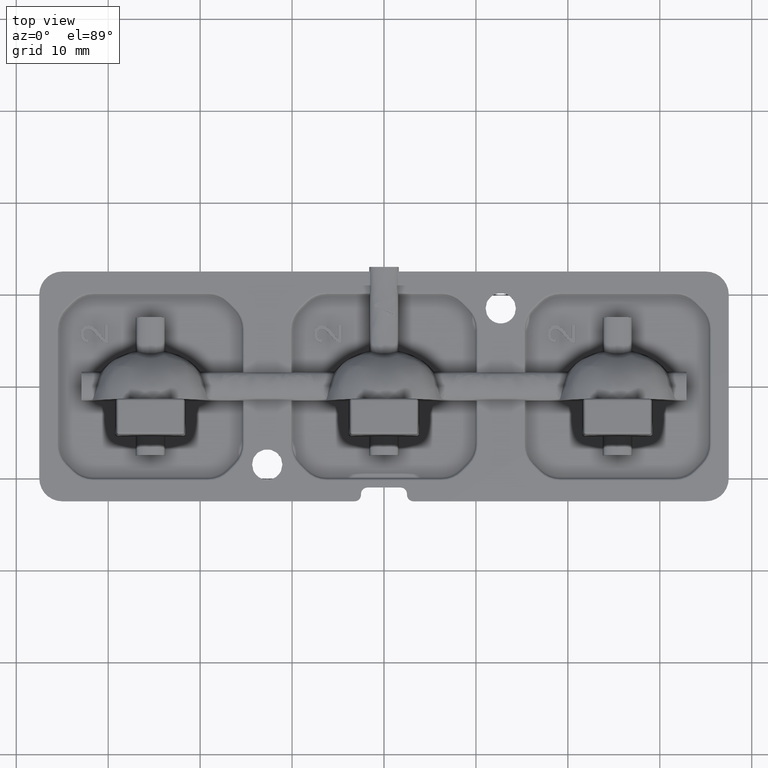
[diagram: clean part render]
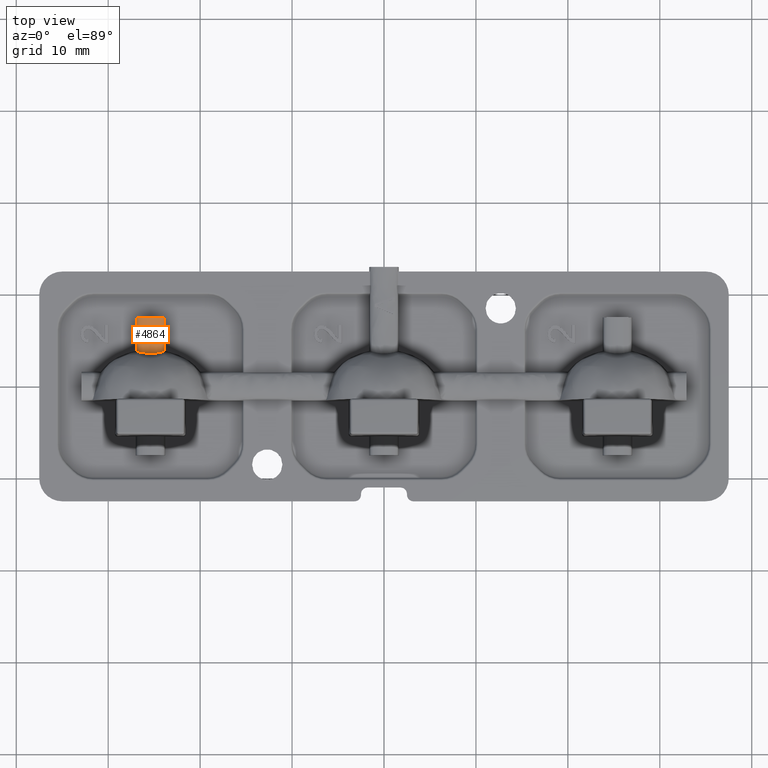
[diagram: same view with one face highlighted and labeled with its STEP entity id]
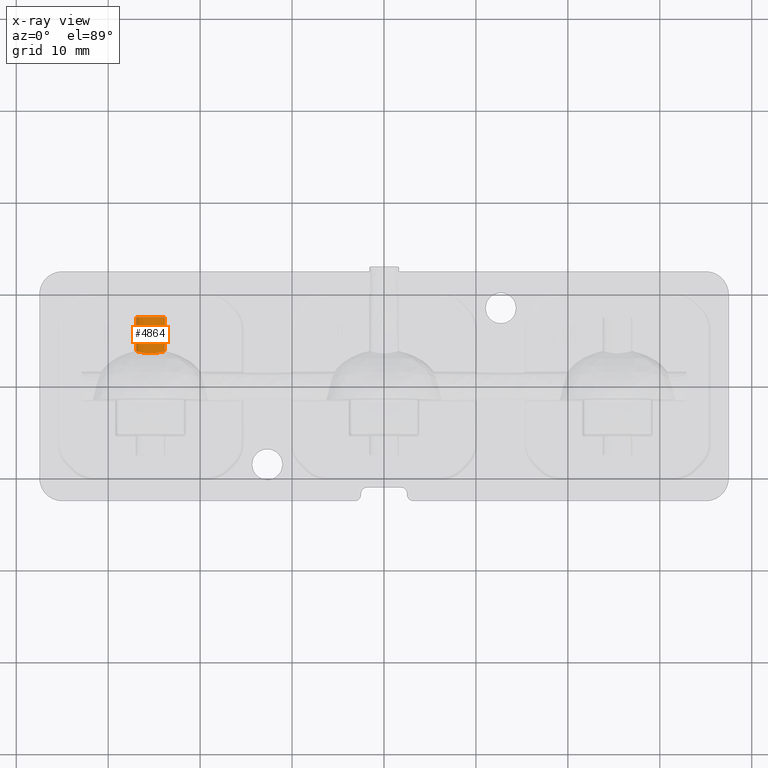
[diagram: x-ray of the same camera — body ghosted, the highlighted face saturated]
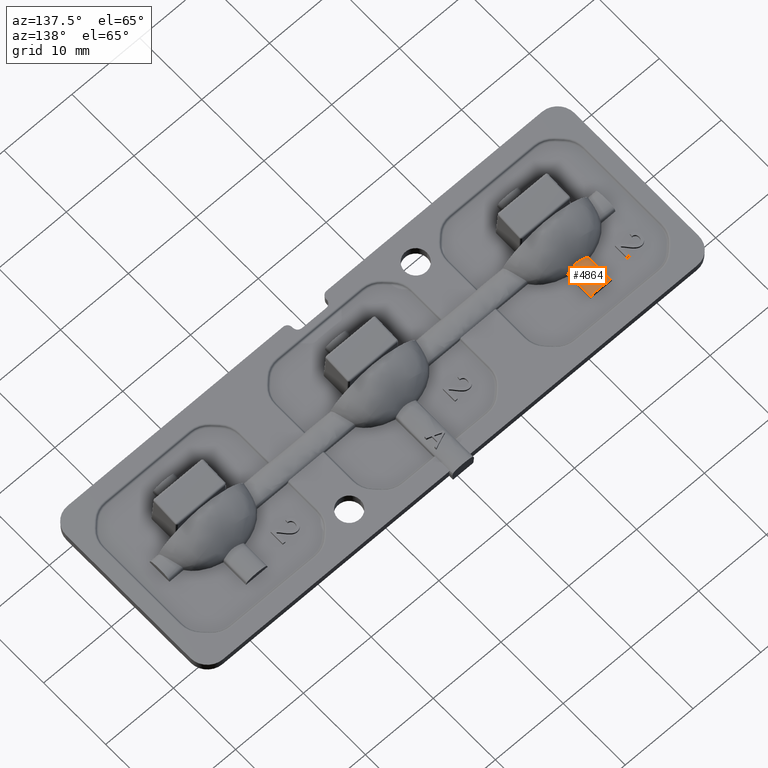
[diagram: same view with one face highlighted and labeled with its STEP entity id]
A machine part, top view. The second image highlights one B-rep face of the part: STEP entity #4864.
The next image is the same camera in x-ray: the body ghosted, the highlighted face saturated — about 0% of this face is hidden behind the body in this view.
A second angle (auxiliary view) of the same face is appended — the face is thin or edge-on in the first view.
In plain terms, the highlighted face is a freeform B-spline surface patch.
Its self-contained STEP definition (entity closure, byte-faithful):
#68 = CARTESIAN_POINT ( 'NONE',  ( -23.87539836149823500, 3.821385603054491900, 1.499999999999999600 ) ) ;
#421 = CARTESIAN_POINT ( 'NONE',  ( -23.87539836149823500, 3.541299811149595000, 1.499999999999999600 ) ) ;
#490 = CARTESIAN_POINT ( 'NONE',  ( -26.92460163850176600, 7.499999999999998200, 1.499999999999999600 ) ) ;
#971 = FACE_OUTER_BOUND ( 'NONE', #12566, .T. ) ;
#1030 = EDGE_CURVE ( 'NONE', #2018, #4409, #4834, .T. ) ;
#1101 = ORIENTED_EDGE ( 'NONE', *, *, #11969, .F. ) ;
#1156 = CARTESIAN_POINT ( 'NONE',  ( -23.94078202163840200, 3.799221690529343200, 1.626110595340802800 ) ) ;
#1214 = CARTESIAN_POINT ( 'NONE',  ( -26.36754574582949600, 3.702012310666085600, 1.874949115227845500 ) ) ;
#1307 = ORIENTED_EDGE ( 'NONE', *, *, #6274, .T. ) ;
#1640 = LINE ( 'NONE', #14422, #4243 ) ;
#2018 = VERTEX_POINT ( 'NONE', #17170 ) ;
#2645 = CARTESIAN_POINT ( 'NONE',  ( -24.10956836413138000, 3.768379432996841000, 1.750364844049080000 ) ) ;
#2706 = CARTESIAN_POINT ( 'NONE',  ( -26.69106098317729100, 3.768488791356735800, 1.749997594569821600 ) ) ;
#3696 = CARTESIAN_POINT ( 'NONE',  ( -26.92460163850176600, 7.500000000000000000, 1.499999999999999600 ) ) ;
#4169 = CARTESIAN_POINT ( 'NONE',  ( -24.43462279092612400, 3.701547958430046600, 1.875478720847853400 ) ) ;
#4243 = VECTOR ( 'NONE', #6933, 1000.000000000000000 ) ;
#4409 = VERTEX_POINT ( 'NONE', #68 ) ;
#4790 = CARTESIAN_POINT ( 'NONE',  ( -23.87539836149823500, 13.49999999999999800, 1.499999999999999600 ) ) ;
#4834 = B_SPLINE_CURVE_WITH_KNOTS ( 'NONE', 3,
 ( #14775, #10143, #8650, #13286, #2706, #11738, #1214, #10218, #19244, #8716, #17738, #7218, #16227, #5696, #14708, #4169, #13214, #2645, #11679, #1156, #7275, #6278 ),
 .UNSPECIFIED., .F., .F.,
 ( 4, 2, 2, 2, 2, 2, 2, 2, 2, 2, 4 ),
 ( 0.0000000000000000000, 0.0002121423934728414300, 0.0004242847869456828600, 0.0008485695738913657200, 0.001272854360837048500, 0.001697139147782731400, 0.002121423934728414300, 0.002545708721674097000, 0.002969993508619780200, 0.003182135902092625900, 0.003394278295565472000 ),
 .UNSPECIFIED. ) ;
#4864 = ADVANCED_FACE ( 'NONE', ( #971 ), #11603, .T. ) ;
#4965 = CARTESIAN_POINT ( 'NONE',  ( -23.87539836149823500, 7.500000000000000000, 1.499999999999999600 ) ) ;
#5696 = CARTESIAN_POINT ( 'NONE',  ( -24.84055747594008400, 3.621066358302333000, 1.951486784454015600 ) ) ;
#6200 = ORIENTED_EDGE ( 'NONE', *, *, #17745, .F. ) ;
#6274 = EDGE_CURVE ( 'NONE', #17192, #2018, #1640, .T. ) ;
#6278 = CARTESIAN_POINT ( 'NONE',  ( -23.87539836149823500, 3.821385603054491900, 1.499999999999999600 ) ) ;
#6507 = CARTESIAN_POINT ( 'NONE',  ( -23.87539836149823500, 7.499999999999998200, 1.499999999999999600 ) ) ;
#6795 = CARTESIAN_POINT ( 'NONE',  ( -23.87539836149823500, 7.500000000000000000, 1.499999999999999600 ) ) ;
#6933 = DIRECTION ( 'NONE',  ( 0.0000000000000000000, -1.000000000000000000, 0.0000000000000000000 ) ) ;
#7218 = CARTESIAN_POINT ( 'NONE',  ( -25.26023704542077300, 3.575741046836608200, 1.982991931950869800 ) ) ;
#7275 = CARTESIAN_POINT ( 'NONE',  ( -23.89377180196011700, 3.809184108596376900, 1.568570613312604900 ) ) ;
#7763 = VERTEX_POINT ( 'NONE', #4965 ) ;
#8016 = CARTESIAN_POINT ( 'NONE',  ( -24.04794439156658100, 3.541299811149595000, 2.143950550859377500 ) ) ;
#8233 = CARTESIAN_POINT ( 'NONE',  ( -26.75205560843341600, 7.500000000000000000, 2.143950550859377500 ) ) ;
#8650 = CARTESIAN_POINT ( 'NONE',  ( -26.86017548458536600, 3.799414653700091000, 1.625135204835311400 ) ) ;
#8716 = CARTESIAN_POINT ( 'NONE',  ( -25.68131596516530700, 3.585963334993937000, 1.976890171649809700 ) ) ;
#9502 = CARTESIAN_POINT ( 'NONE',  ( -26.75205560843341600, 3.541299811149595000, 2.143950550859377500 ) ) ;
#10143 = CARTESIAN_POINT ( 'NONE',  ( -26.90625193629971400, 3.809199259546629500, 1.568482020921830600 ) ) ;
#10218 = CARTESIAN_POINT ( 'NONE',  ( -26.09661766685280800, 3.646090667824754200, 1.932396535499892400 ) ) ;
#10767 = DIRECTION ( 'NONE',  ( 0.0000000000000000000, -1.000000000000000000, 0.0000000000000000000 ) ) ;
#10999 = CARTESIAN_POINT ( 'NONE',  ( -26.92460163850176600, 3.541299811149595000, 1.499999999999999600 ) ) ;
#11603 = B_SPLINE_SURFACE_WITH_KNOTS ( 'NONE', 3, 1, ( 
 ( #6507, #421 ),
 ( #17028, #8016 ),
 ( #18531, #9502 ),
 ( #490, #10999 ) ),
 .UNSPECIFIED., .F., .F., .F.,
 ( 4, 4 ),
 ( 2, 2 ),
 ( 0.0000000000000000000, 1.000000000000000000 ),
 ( 0.0000000000000000000, 1.000000000000000000 ),
 .UNSPECIFIED. ) ;
#11679 = CARTESIAN_POINT ( 'NONE',  ( -24.04806278314949400, 3.779001648724471500, 1.715628029103097000 ) ) ;
#11738 = CARTESIAN_POINT ( 'NONE',  ( -26.50193156181019200, 3.732209131099196500, 1.837494681993339300 ) ) ;
#11969 = EDGE_CURVE ( 'NONE', #7763, #4409, #14683, .T. ) ;
#12566 = EDGE_LOOP ( 'NONE', ( #6200, #1307, #17111, #1101 ) ) ;
#12652 = CARTESIAN_POINT ( 'NONE',  ( -26.92460163850176600, 7.500000000000000000, 1.499999999999999600 ) ) ;
#13214 = CARTESIAN_POINT ( 'NONE',  ( -24.29998377647900300, 3.731825419985595400, 1.838226668095384700 ) ) ;
#13286 = CARTESIAN_POINT ( 'NONE',  ( -26.75257707471958600, 3.779107459490872700, 1.715267947899156800 ) ) ;
#14422 = CARTESIAN_POINT ( 'NONE',  ( -26.92460163850176600, 13.49999999999999800, 1.499999999999999600 ) ) ;
#14683 = LINE ( 'NONE', #4790, #18211 ) ;
#14708 = CARTESIAN_POINT ( 'NONE',  ( -24.70396371737927800, 3.645992510016862600, 1.932449304922271100 ) ) ;
#14775 = CARTESIAN_POINT ( 'NONE',  ( -26.92460163850176600, 3.821385187570781800, 1.499999999999999600 ) ) ;
#15678 = B_SPLINE_CURVE_WITH_KNOTS ( 'NONE', 3,
 ( #12652, #8233, #15794, #6795 ),
 .UNSPECIFIED., .F., .F.,
 ( 4, 4 ),
 ( 0.0000000000000000000, 1.000000000000000000 ),
 .UNSPECIFIED. ) ;
#15794 = CARTESIAN_POINT ( 'NONE',  ( -24.04794439156658100, 7.500000000000000000, 2.143950550859377500 ) ) ;
#16227 = CARTESIAN_POINT ( 'NONE',  ( -25.11807484202634600, 3.586010961411381500, 1.976861703885897300 ) ) ;
#17028 = CARTESIAN_POINT ( 'NONE',  ( -24.04794439156658100, 7.499999999999998200, 2.143950550859377500 ) ) ;
#17111 = ORIENTED_EDGE ( 'NONE', *, *, #1030, .T. ) ;
#17170 = CARTESIAN_POINT ( 'NONE',  ( -26.92460163850176600, 3.821385187570781800, 1.499999999999999600 ) ) ;
#17192 = VERTEX_POINT ( 'NONE', #3696 ) ;
#17738 = CARTESIAN_POINT ( 'NONE',  ( -25.54175695881041700, 3.575836268337550200, 1.982933688067645600 ) ) ;
#17745 = EDGE_CURVE ( 'NONE', #17192, #7763, #15678, .T. ) ;
#18211 = VECTOR ( 'NONE', #10767, 1000.000000000000000 ) ;
#18531 = CARTESIAN_POINT ( 'NONE',  ( -26.75205560843341600, 7.499999999999998200, 2.143950550859377500 ) ) ;
#19244 = CARTESIAN_POINT ( 'NONE',  ( -25.95840608490399500, 3.620904939631504900, 1.951608624476349800 ) ) ;